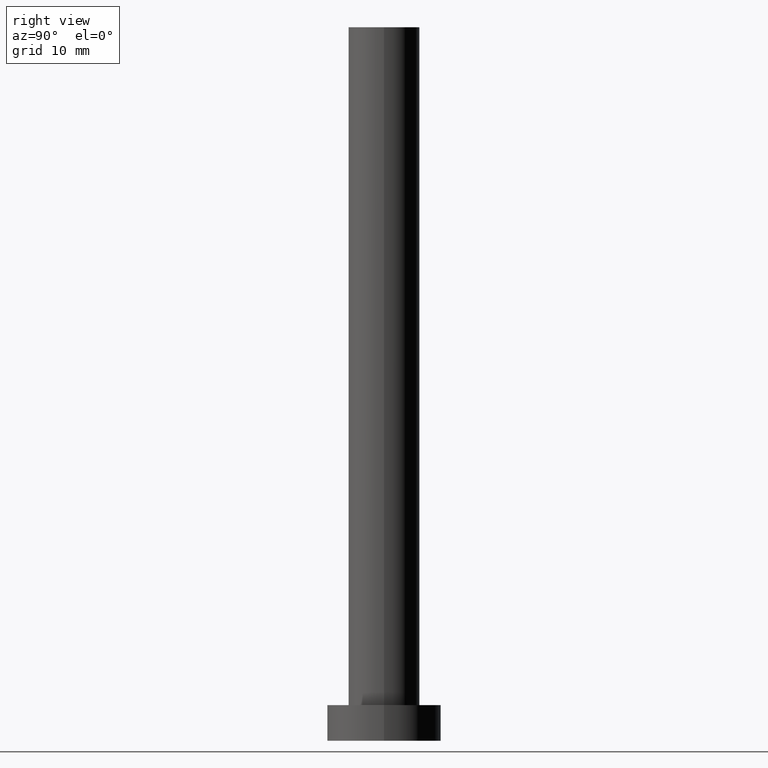
[diagram: clean part render]
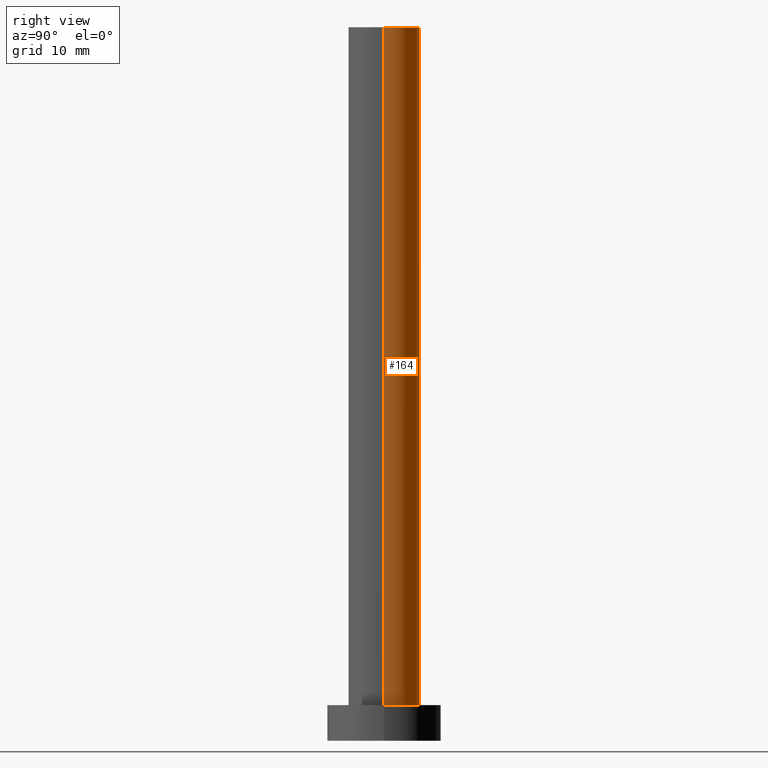
[diagram: same view with one face highlighted and labeled with its STEP entity id]
A machine part, right view. The second image highlights one B-rep face of the part: STEP entity #164.
In plain terms, the highlighted cylindrical surface (edge-blend (fillet) strip) has radius 5 mm, axis along (-0, -0, -1).
Its self-contained STEP definition (entity closure, byte-faithful):
#1 = DIRECTION ( 'NONE',  ( -0.000000000000000000, -0.000000000000000000, -1.000000000000000000 ) ) ;
#3 = CARTESIAN_POINT ( 'NONE',  ( 5.000000000000000000, 6.123233995736766282E-16, 100.0000000000000000 ) ) ;
#13 = CIRCLE ( 'NONE', #78, 5.000000000000000000 ) ;
#20 = ORIENTED_EDGE ( 'NONE', *, *, #119, .F. ) ;
#22 = LINE ( 'NONE', #38, #122 ) ;
#25 = CYLINDRICAL_SURFACE ( 'NONE', #41, 5.000000000000000000 ) ;
#35 = CARTESIAN_POINT ( 'NONE',  ( 0.000000000000000000, 0.000000000000000000, 5.000000000000000000 ) ) ;
#36 = DIRECTION ( 'NONE',  ( 0.000000000000000000, 0.000000000000000000, 1.000000000000000000 ) ) ;
#38 = CARTESIAN_POINT ( 'NONE',  ( 5.000000000000000000, 6.123233995736766282E-16, 100.0000000000000000 ) ) ;
#41 = AXIS2_PLACEMENT_3D ( 'NONE', #57, #1, #165 ) ;
#47 = EDGE_CURVE ( 'NONE', #74, #178, #251, .T. ) ;
#48 = AXIS2_PLACEMENT_3D ( 'NONE', #35, #36, #121 ) ;
#54 = DIRECTION ( 'NONE',  ( -0.000000000000000000, -0.000000000000000000, -1.000000000000000000 ) ) ;
#57 = CARTESIAN_POINT ( 'NONE',  ( 0.000000000000000000, 0.000000000000000000, 100.0000000000000000 ) ) ;
#72 = ORIENTED_EDGE ( 'NONE', *, *, #86, .T. ) ;
#74 = VERTEX_POINT ( 'NONE', #137 ) ;
#78 = AXIS2_PLACEMENT_3D ( 'NONE', #207, #83, #128 ) ;
#83 = DIRECTION ( 'NONE',  ( 0.000000000000000000, 0.000000000000000000, 1.000000000000000000 ) ) ;
#85 = DIRECTION ( 'NONE',  ( -0.000000000000000000, -0.000000000000000000, -1.000000000000000000 ) ) ;
#86 = EDGE_CURVE ( 'NONE', #134, #178, #174, .T. ) ;
#96 = ORIENTED_EDGE ( 'NONE', *, *, #133, .T. ) ;
#108 = CARTESIAN_POINT ( 'NONE',  ( 5.000000000000000000, 6.123233995736766282E-16, 5.000000000000000000 ) ) ;
#119 = EDGE_CURVE ( 'NONE', #234, #74, #13, .T. ) ;
#121 = DIRECTION ( 'NONE',  ( 1.000000000000000000, 0.000000000000000000, 0.000000000000000000 ) ) ;
#122 = VECTOR ( 'NONE', #85, 1000.000000000000000 ) ;
#128 = DIRECTION ( 'NONE',  ( 1.000000000000000000, 0.000000000000000000, 0.000000000000000000 ) ) ;
#133 = EDGE_CURVE ( 'NONE', #234, #134, #22, .T. ) ;
#134 = VERTEX_POINT ( 'NONE', #108 ) ;
#137 = CARTESIAN_POINT ( 'NONE',  ( -5.000000000000000000, 0.000000000000000000, 100.0000000000000000 ) ) ;
#157 = EDGE_LOOP ( 'NONE', ( #20, #96, #72, #254 ) ) ;
#163 = FACE_OUTER_BOUND ( 'NONE', #157, .T. ) ;
#164 = ADVANCED_FACE ( 'NONE', ( #163 ), #25, .T. ) ;
#165 = DIRECTION ( 'NONE',  ( -1.000000000000000000, 0.000000000000000000, 0.000000000000000000 ) ) ;
#167 = CARTESIAN_POINT ( 'NONE',  ( -5.000000000000000000, 0.000000000000000000, 5.000000000000000000 ) ) ;
#174 = CIRCLE ( 'NONE', #48, 5.000000000000000000 ) ;
#178 = VERTEX_POINT ( 'NONE', #167 ) ;
#207 = CARTESIAN_POINT ( 'NONE',  ( 0.000000000000000000, 0.000000000000000000, 100.0000000000000000 ) ) ;
#234 = VERTEX_POINT ( 'NONE', #3 ) ;
#236 = CARTESIAN_POINT ( 'NONE',  ( -5.000000000000000000, 0.000000000000000000, 100.0000000000000000 ) ) ;
#246 = VECTOR ( 'NONE', #54, 1000.000000000000000 ) ;
#251 = LINE ( 'NONE', #236, #246 ) ;
#254 = ORIENTED_EDGE ( 'NONE', *, *, #47, .F. ) ;